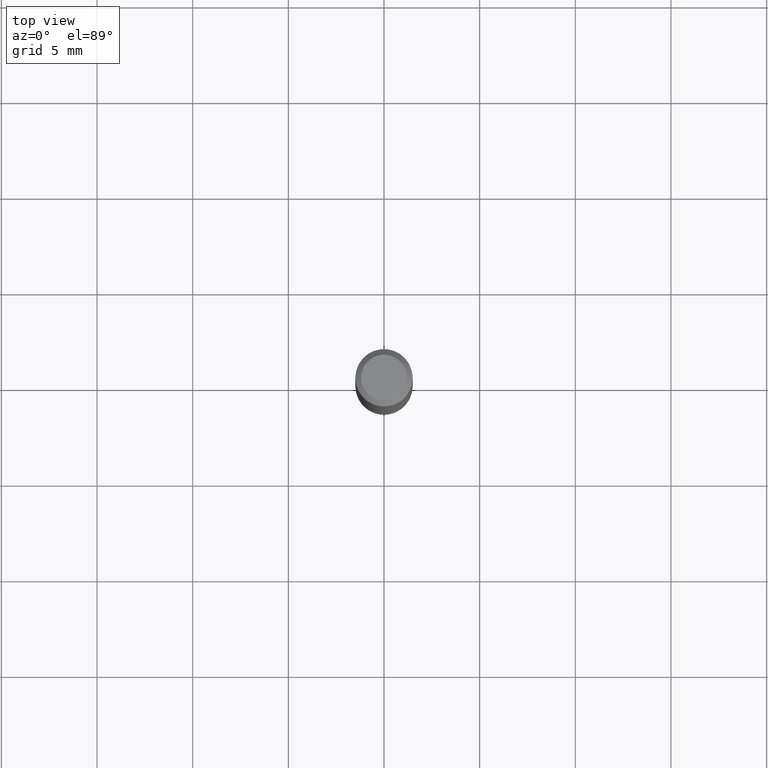
[diagram: clean part render]
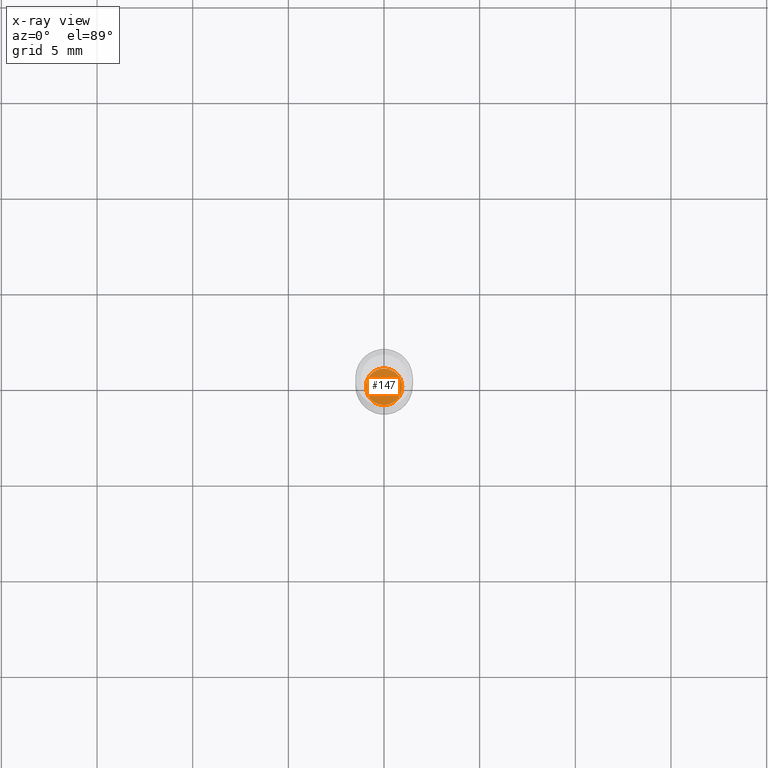
[diagram: x-ray — body ghosted, one internal face saturated and labeled with its STEP entity id]
A machine part, top view, then the same camera in x-ray: the body is ghosted and one INTERNAL B-rep face — a face not visible from any outside direction — is saturated and labeled: STEP entity #147.
In plain terms, the highlighted planar face has unit normal (-0, 0, 1).
Its self-contained STEP definition (entity closure, byte-faithful):
#36 = CARTESIAN_POINT ( 'NONE',  ( 2.676565608369632355E-29, -3.821426325363822773E-15, -1.094500000000000028 ) ) ;
#49 = CIRCLE ( 'NONE', #351, 0.03749999999999999167 ) ;
#54 = VERTEX_POINT ( 'NONE', #177 ) ;
#64 = DIRECTION ( 'NONE',  ( 1.000000000000000000, -6.982962677686265922E-15, 4.876176775795935793E-29 ) ) ;
#77 = CARTESIAN_POINT ( 'NONE',  ( -0.03749999999999999167, -3.552323572279673766E-15, -1.094500000000000028 ) ) ;
#128 = AXIS2_PLACEMENT_3D ( 'NONE', #306, #374, #227 ) ;
#141 = EDGE_CURVE ( 'NONE', #327, #54, #465, .T. ) ;
#147 = ADVANCED_FACE ( 'NONE', ( #303 ), #414, .F. ) ;
#177 = CARTESIAN_POINT ( 'NONE',  ( 0.03749999999999999167, -4.083287425777057775E-15, -1.094500000000000028 ) ) ;
#192 = DIRECTION ( 'NONE',  ( 1.000000000000000000, -6.982962677686269866E-15, 0.000000000000000000 ) ) ;
#227 = DIRECTION ( 'NONE',  ( 1.000000000000000000, -6.982962677686269866E-15, 0.000000000000000000 ) ) ;
#297 = EDGE_LOOP ( 'NONE', ( #393, #400 ) ) ;
#303 = FACE_OUTER_BOUND ( 'NONE', #297, .T. ) ;
#306 = CARTESIAN_POINT ( 'NONE',  ( 2.676565608369632355E-29, -3.821426325363822773E-15, -1.094500000000000028 ) ) ;
#311 = EDGE_CURVE ( 'NONE', #54, #327, #49, .T. ) ;
#327 = VERTEX_POINT ( 'NONE', #77 ) ;
#330 = AXIS2_PLACEMENT_3D ( 'NONE', #341, #454, #64 ) ;
#341 = CARTESIAN_POINT ( 'NONE',  ( -1.073159489319468421E-30, -7.808103164117872297E-15, -1.094500000000000028 ) ) ;
#351 = AXIS2_PLACEMENT_3D ( 'NONE', #36, #420, #192 ) ;
#374 = DIRECTION ( 'NONE',  ( -2.445468806185136597E-29, 3.491481338843145583E-15, 1.000000000000000000 ) ) ;
#393 = ORIENTED_EDGE ( 'NONE', *, *, #311, .F. ) ;
#400 = ORIENTED_EDGE ( 'NONE', *, *, #141, .F. ) ;
#414 = PLANE ( 'NONE',  #330 ) ;
#420 = DIRECTION ( 'NONE',  ( -2.445468806185136597E-29, 3.491481338843145583E-15, 1.000000000000000000 ) ) ;
#454 = DIRECTION ( 'NONE',  ( -2.438088387897960049E-29, 3.491481338843145188E-15, 1.000000000000000000 ) ) ;
#465 = CIRCLE ( 'NONE', #128, 0.03749999999999999167 ) ;